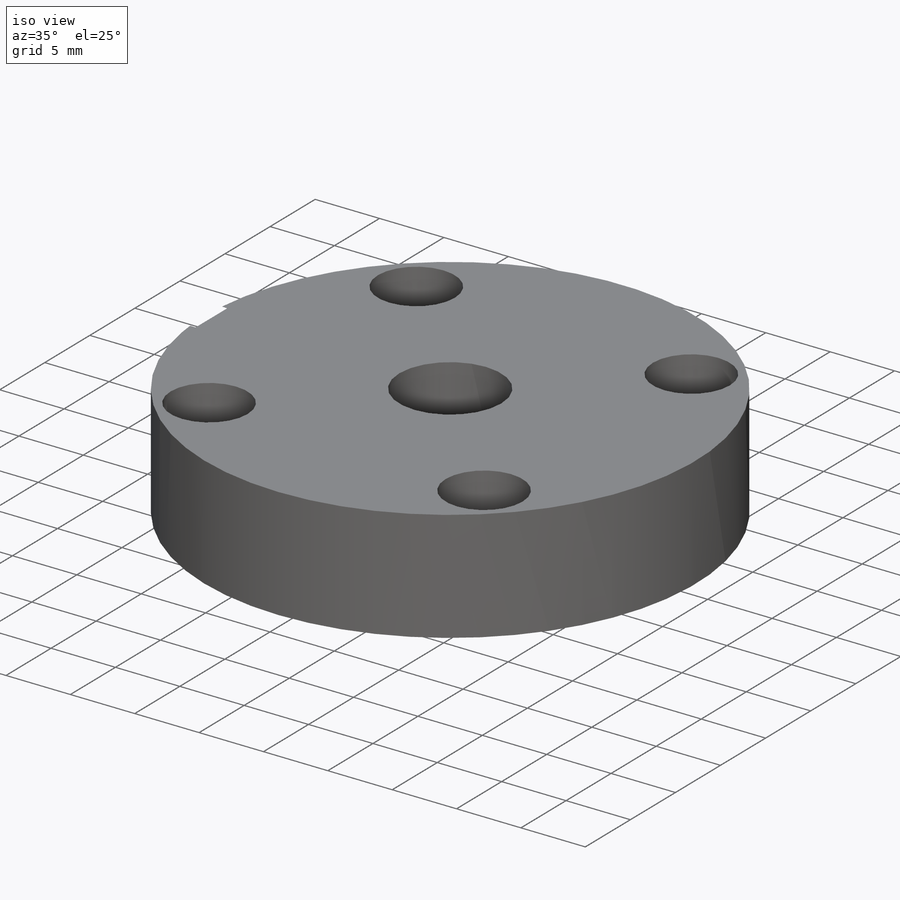
[diagram: iso view]
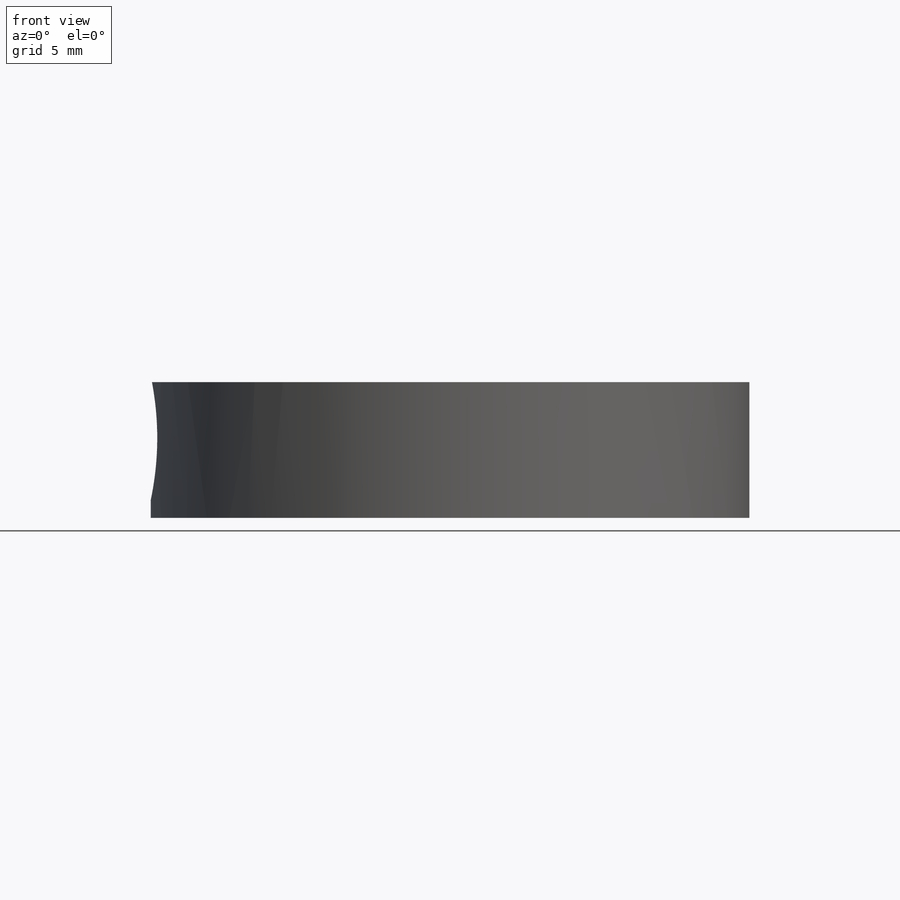
[diagram: front view]
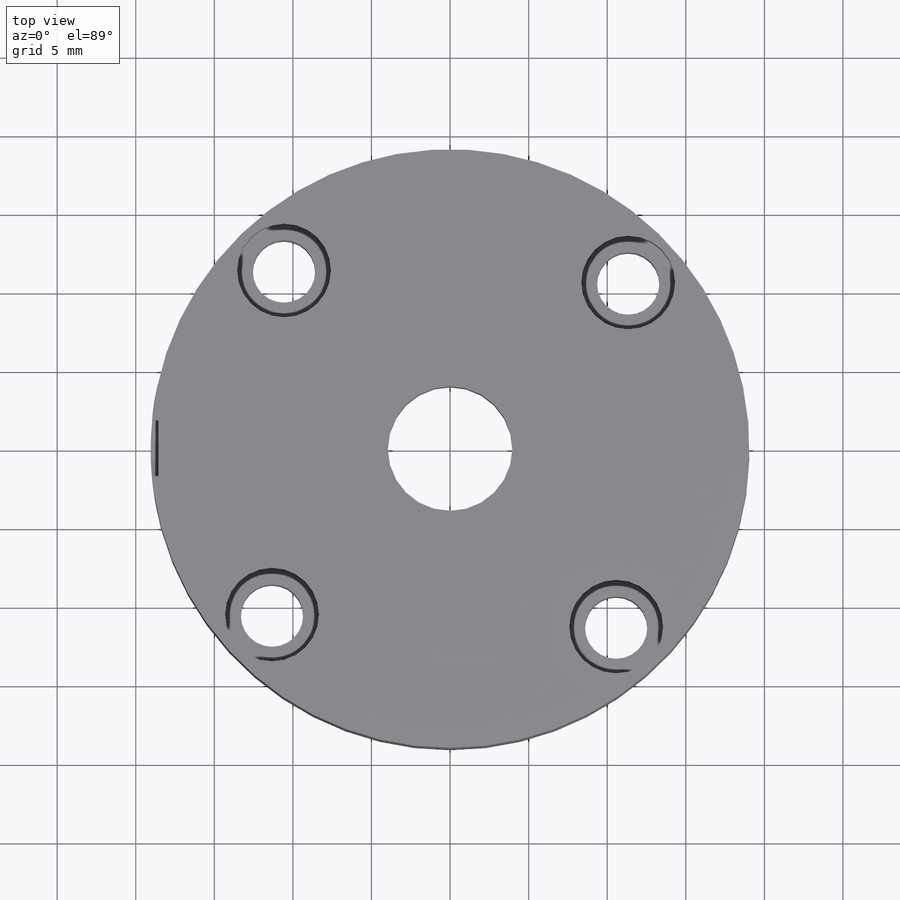
[diagram: top view]
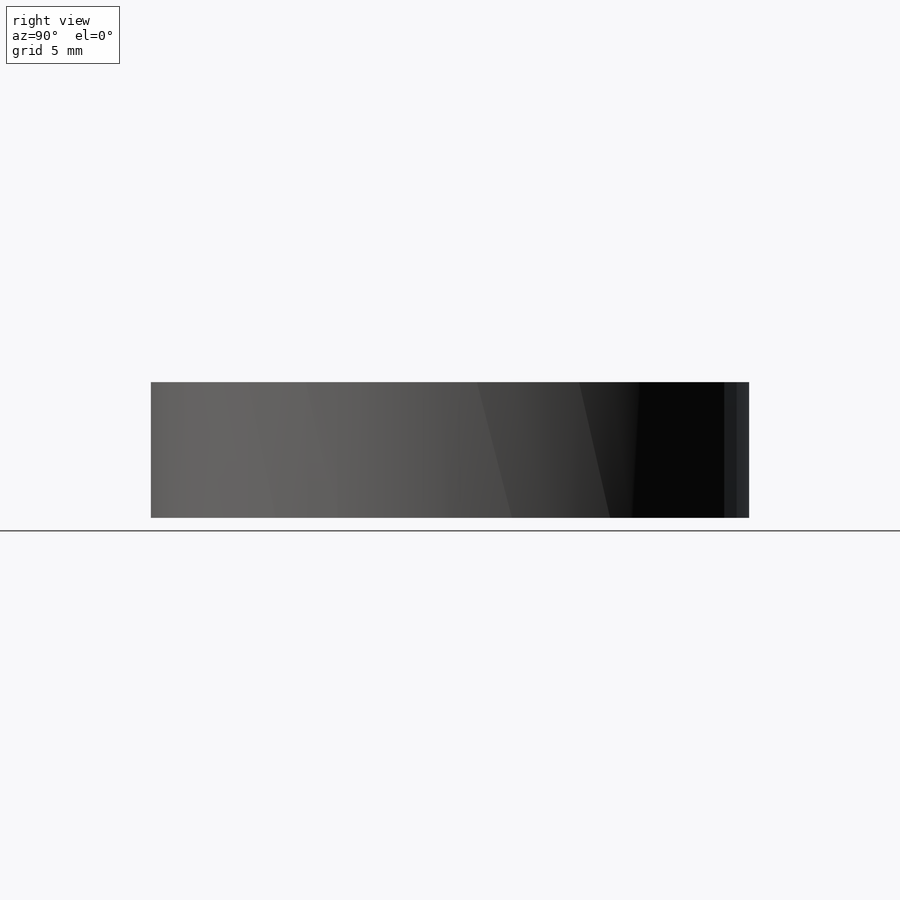
[diagram: right view]
SOLIDWORKS PART (.sldprt)
format: sldprt  version: not decoded by parser v0  size: 573,952 bytes
history: native  units: mm
features: plane x103, sketch x49, hole x9, cut_revolve x2, material x1, revolve x1, thread x1 (+14 scaffold rows collapsed; 1 parser-record rows omitted)
feature tree (181):
  scaffold x14  (default folders/planes/origin — collapsed)
  material  "6061-T6 (SS)"
  sketch  "Sketch1"
  revolve  "Revolve1"  Angle=360deg
  plane  "Plane1"
  sketch  "Sketch2"
  cut_revolve  "Cut-Revolve1"  [1 undecoded]
  thread  "Cosmetic Thread1"  Diameter=3.2004mm  [1 undecoded]
  plane  "Plane2"  Offset=34.036mm
  plane  "Plane3"
  hole  "Hole1"  Diameter=3.9624mm Depth=8.636mm
  sketch  "Sketch4"
  sketch  "Sketch3"  dims[Diameter=3.9624mm Depth=8.636mm C-Bore Diameter=5.969mm C-Bore Depth=3.7592mm]
  plane  "Plane4"
  hole  "Hole2"  Diameter=3.9624mm Depth=8.636mm
  sketch  "Sketch6"
  sketch  "Sketch5"  dims[Diameter=3.9624mm Depth=8.636mm C-Bore Diameter=5.969mm C-Bore Depth=3.7592mm]
  plane  "Plane5"
  hole  "Hole3"  Diameter=3.9624mm Depth=8.636mm
  sketch  "Sketch8"
  sketch  "Sketch7"  dims[Diameter=3.9624mm Depth=8.636mm C-Bore Diameter=5.969mm C-Bore Depth=3.7592mm]
  plane  "Plane6"
  hole  "Hole4"  Diameter=3.9624mm Depth=8.636mm
  sketch  "Sketch10"
  sketch  "Sketch9"  dims[Diameter=3.9624mm Depth=8.636mm C-Bore Diameter=5.969mm C-Bore Depth=3.7592mm]
  plane  "Plane7"
  hole  "Hole5"  Diameter=7.9248mm Depth=8.636mm
  sketch  "Sketch12"
  sketch  "Sketch11"  dims[Diameter=7.9248mm Depth=8.636mm]
  sketch  "Sketch13"
  cut_revolve  "Cut-Revolve2"  Angle=360deg
  plane  "Plane8"  Offset=10.16mm
  plane  "Plane9"  Offset=8.636mm
  plane  "Plane10"  Offset=0mm
  plane  "Plane11"  Offset=8.636mm
  plane  "Plane12"  Offset=3.302mm
  plane  "Plane13"  Offset=4.318mm
  plane  "Plane14"  Offset=8.636mm
  plane  "Plane15"  Offset=8.636mm
  hole  "Hole6"  Diameter=3.4544mm Depth=4.318mm
  sketch  "Sketch15"
  sketch  "Sketch14"  dims[Diameter=3.4544mm Depth=4.318mm]
  hole  "Hole7"  Diameter=3.4544mm Depth=4.318mm
  sketch  "Sketch17"
  sketch  "Sketch16"  dims[Diameter=3.4544mm Depth=4.318mm]
  hole  "Hole8"  Diameter=3.4544mm Depth=4.318mm
  sketch  "Sketch19"
  sketch  "Sketch18"  dims[Diameter=3.4544mm Depth=4.318mm]
  hole  "Hole9"  Diameter=3.4544mm Depth=4.318mm
  sketch  "Sketch21"
  sketch  "Sketch20"  dims[Diameter=3.4544mm Depth=4.318mm]
  plane  "Plane16"  Offset=4.318mm
  plane  "Plane17"  Offset=4.318mm
  plane  "Plane18"  Offset=4.318mm
  plane  "Plane19"  Offset=4.318mm
  parser-record x1  (decoder bookkeeping rows leaked as tree rows — omitted from the tree; the rows remain in map.json)
  plane  "a1 XY"
  plane  "a1 XZ"
  plane  "a1 YZ"
  sketch  "a1"
  plane  "a2 XY"
  plane  "a2 XZ"
  plane  "a2 YZ"
  sketch  "a2"
  plane  "ar3 XY"
  plane  "ar3 XZ"
  plane  "ar3 YZ"
  sketch  "ar3"
  plane  "ar4 XY"
  plane  "ar4 XZ"
  plane  "ar4 YZ"
  sketch  "ar4"
  plane  "ar5 XY"
  plane  "ar5 XZ"
  plane  "ar5 YZ"
  sketch  "ar5"
  plane  "ar6 XY"
  plane  "ar6 XZ"
  plane  "ar6 YZ"
  sketch  "ar6"
  plane  "b1 XY"
  plane  "b1 XZ"
  plane  "b1 YZ"
  sketch  "b1"
  plane  "c11 XY"
  plane  "c11 XZ"
  plane  "c11 YZ"
  sketch  "c11"
  plane  "c22 XY"
  plane  "c22 XZ"
  plane  "c22 YZ"
  sketch  "c22"
  plane  "d11 XY"
  plane  "d11 XZ"
  plane  "d11 YZ"
  sketch  "d11"
  plane  "d22 XY"
  plane  "d22 XZ"
  plane  "d22 YZ"
  sketch  "d22"
  plane  "j XY"
  plane  "j XZ"
  plane  "j YZ"
  sketch  "j"
  plane  "k1 XY"
  plane  "k1 XZ"
  plane  "k1 YZ"
  sketch  "k1"
  plane  "k2 XY"
  plane  "k2 XZ"
  plane  "k2 YZ"
  sketch  "k2"
  plane  "l1 XY"
  plane  "l1 XZ"
  plane  "l1 YZ"
  sketch  "l1"
  plane  "l2 XY"
  plane  "l2 XZ"
  plane  "l2 YZ"
  sketch  "l2"
  plane  "rg XY"
  plane  "rg XZ"
  plane  "rg YZ"
  sketch  "rg"
  plane  "rh XY"
  plane  "rh XZ"
  plane  "rh YZ"
  sketch  "rh"
  plane  "to dummy XY"
  plane  "to dummy XZ"
  plane  "to dummy YZ"
  sketch  "to dummy"
  plane  "to nut XY"
  plane  "to nut XZ"
  plane  "to nut YZ"
  sketch  "to nut"
  plane  "to rod XY"
  plane  "to rod XZ"
  plane  "to rod YZ"
  sketch  "to rod"
  plane  "to tube XY"
  plane  "to tube XZ"
  plane  "to tube YZ"
  sketch  "to tube"
  plane  "to wiper XY"
  plane  "to wiper XZ"
  plane  "to wiper YZ"
  sketch  "to wiper"
  plane  "to_rod XY"
  plane  "to_rod XZ"
  plane  "to_rod YZ"
  sketch  "to_rod"
  plane  "track1 XY"
  plane  "track1 XZ"
  plane  "track1 YZ"
  sketch  "track1"
  plane  "track2 XY"
  plane  "track2 XZ"
  plane  "track2 YZ"
  sketch  "track2"
  plane  "track3 XY"
  plane  "track3 XZ"
  plane  "track3 YZ"
  sketch  "track3"
  plane  "track4 XY"
  plane  "track4 XZ"
  plane  "track4 YZ"
  sketch  "track4"
decode coverage: 21 of 62 modeling features carry decoded parameters
note: 2 parameter values undecoded
summary: Diameter pulled from absorbed wizard sketch
note: suppression state not decoded; provenance and decode notes live in map.json
